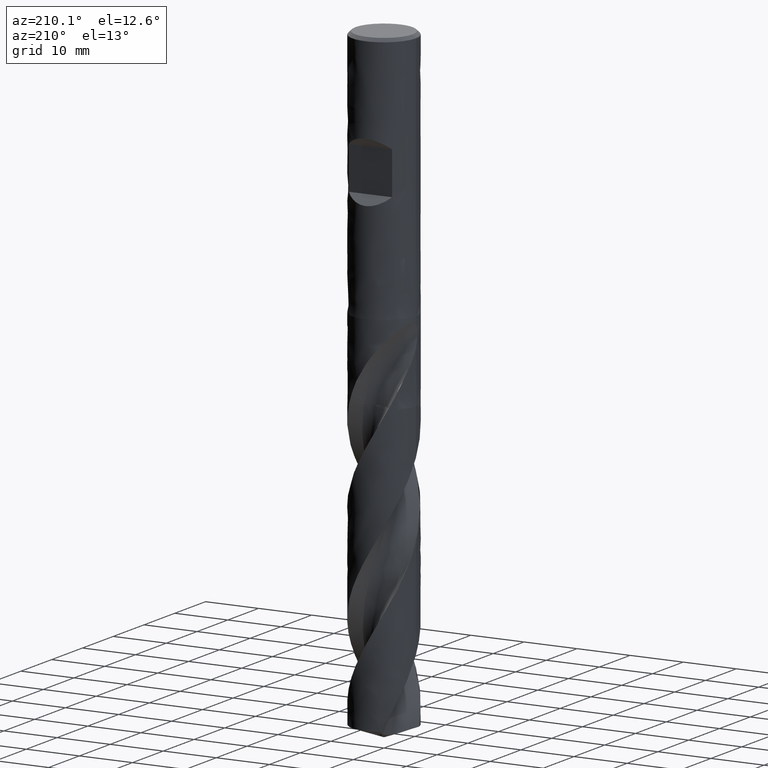
[diagram: clean part render]
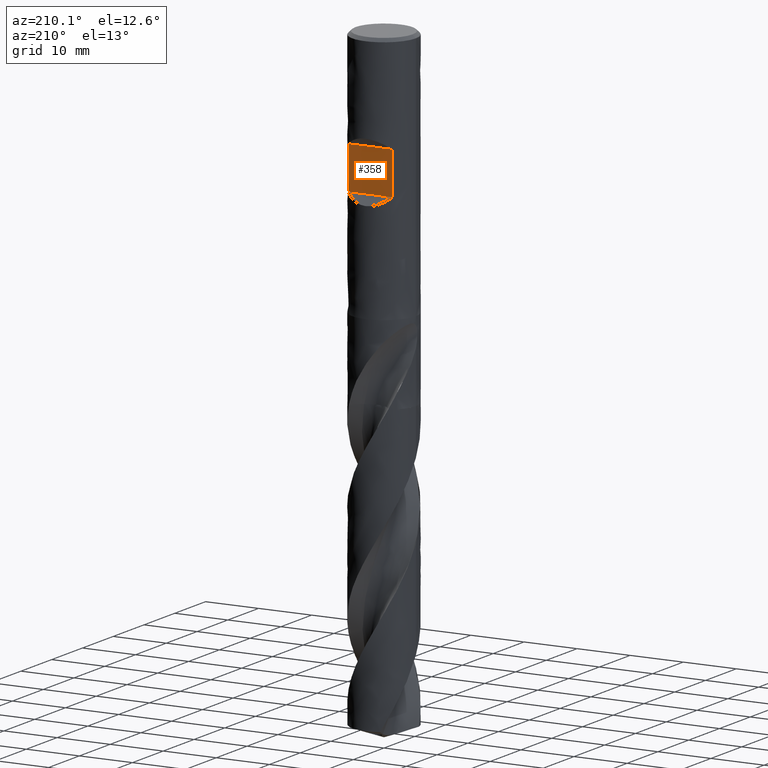
[diagram: same view with one face highlighted and labeled with its STEP entity id]
A machine part, auxiliary view. The second image highlights one B-rep face of the part: STEP entity #358.
In plain terms, the highlighted planar face has unit normal (0, 1, 0).
Its self-contained STEP definition (entity closure, byte-faithful):
#148 = VERTEX_POINT('', #149);
#149 = CARTESIAN_POINT('', (-4.07921561087423, 4.4, -18.5));
#150 = VERTEX_POINT('', #151);
#151 = CARTESIAN_POINT('', (4.07921561087423, 4.4, -18.5));
#239 = EDGE_CURVE('', #148, #240, #242, .T.);
#240 = VERTEX_POINT('', #241);
#241 = CARTESIAN_POINT('', (-4.07921561087423, 4.4, -26.5));
#242 = LINE('', #243, #244);
#243 = CARTESIAN_POINT('', (-4.07921561087423, 4.4, -18.5));
#244 = VECTOR('', #245, 8.00000000000001);
#245 = DIRECTION('', (-8.88178419700125E-16, 0., -8.00000000000001));
#248 = VERTEX_POINT('', #249);
#249 = CARTESIAN_POINT('', (4.07921561087423, 4.4, -26.5));
#334 = EDGE_CURVE('', #150, #248, #335, .T.);
#335 = LINE('', #336, #337);
#336 = CARTESIAN_POINT('', (4.07921561087423, 4.4, -18.5));
#337 = VECTOR('', #338, 8.);
#338 = DIRECTION('', (-8.88178419700125E-16, 0., -8.));
#358 = ADVANCED_FACE('', (#359), #375, .T.);
#359 = FACE_OUTER_BOUND('', #360, .T.);
#360 = EDGE_LOOP('', (#361, #362, #368, #369));
#361 = ORIENTED_EDGE('', *, *, #334, .T.);
#362 = ORIENTED_EDGE('', *, *, #363, .T.);
#363 = EDGE_CURVE('', #248, #240, #364, .T.);
#364 = LINE('', #365, #366);
#365 = CARTESIAN_POINT('', (4.07921561087423, 4.4, -26.5));
#366 = VECTOR('', #367, 8.15843122174846);
#367 = DIRECTION('', (-8.15843122174846, 8.88178419700125E-16, 0.));
#368 = ORIENTED_EDGE('', *, *, #239, .F.);
#369 = ORIENTED_EDGE('', *, *, #370, .F.);
#370 = EDGE_CURVE('', #150, #148, #371, .T.);
#371 = LINE('', #372, #373);
#372 = CARTESIAN_POINT('', (4.07921561087423, 4.4, -18.5));
#373 = VECTOR('', #374, 8.15843122174846);
#374 = DIRECTION('', (-8.15843122174846, 8.88178419700125E-16, 0.));
#375 = PLANE('', #376);
#376 = AXIS2_PLACEMENT_3D('', #377, #378, #379);
#377 = CARTESIAN_POINT('', (6., 4.4, -26.5));
#378 = DIRECTION('', (1.48029736616688E-16, 1., 0.));
#379 = DIRECTION('', (-1., 1.48029736616688E-16, 0.));